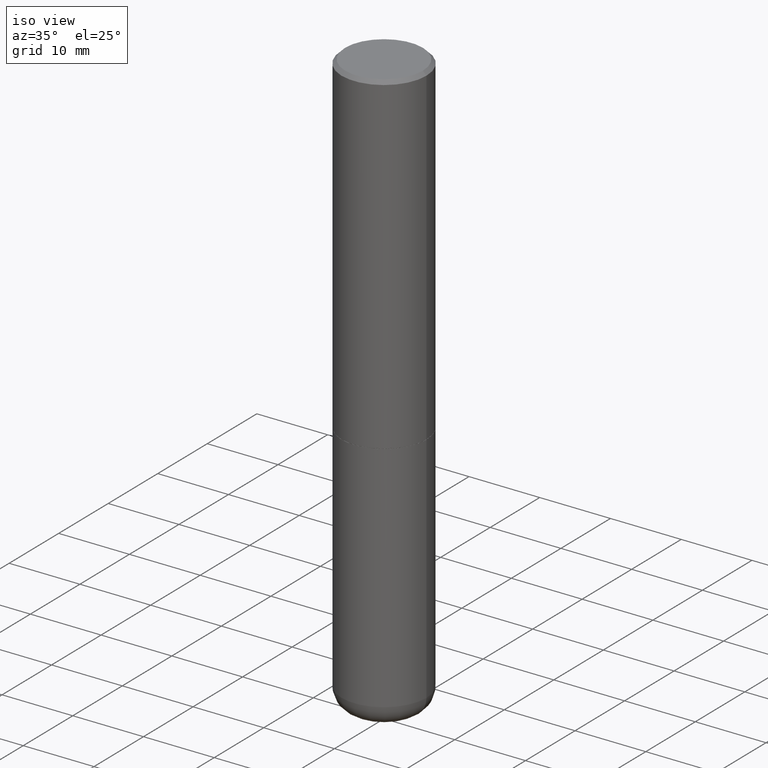
[diagram: clean part render]
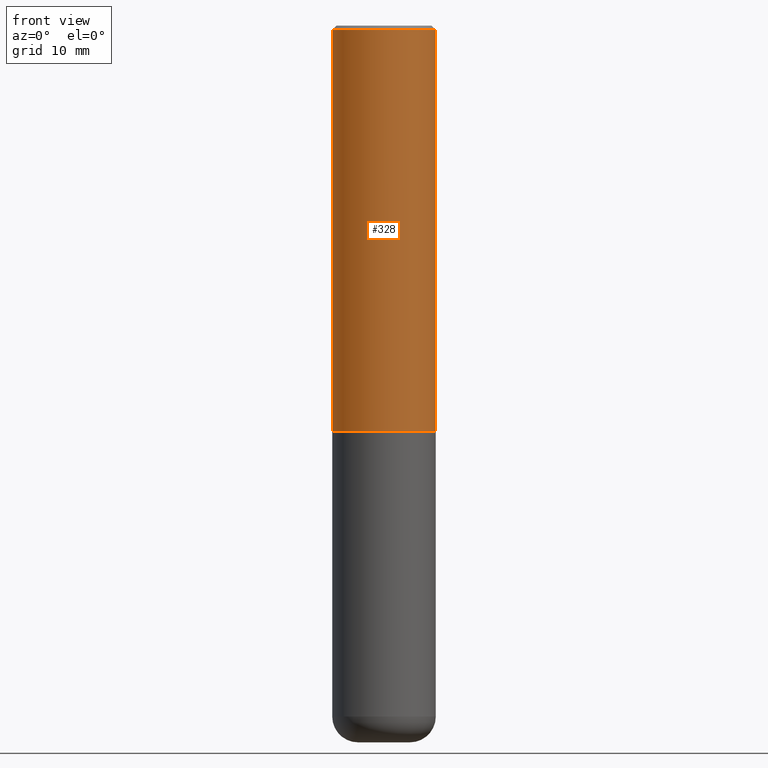
[diagram: tour spotlight — one face highlighted and labeled with its STEP entity id]
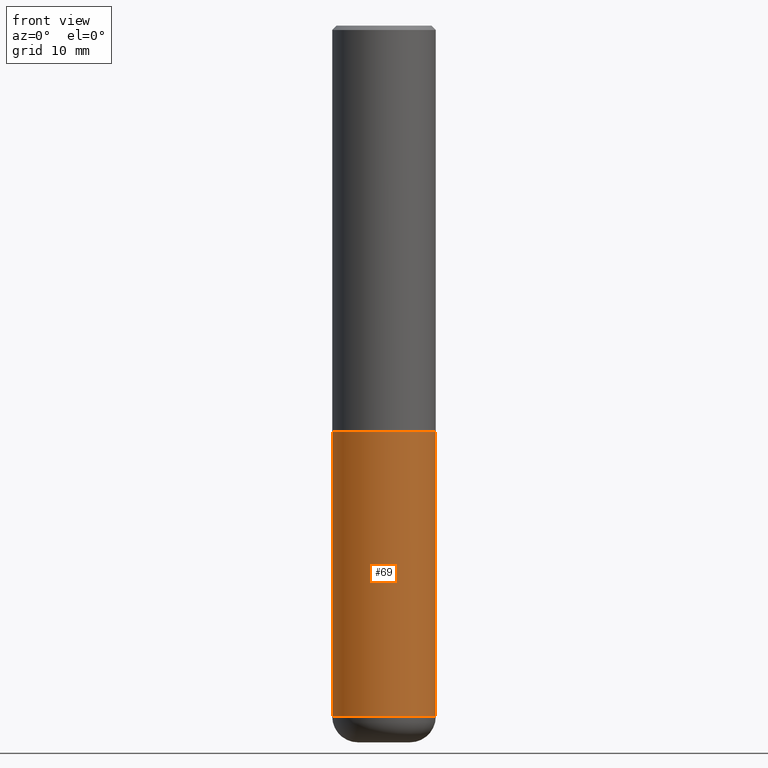
[diagram: tour spotlight — one face highlighted and labeled with its STEP entity id]
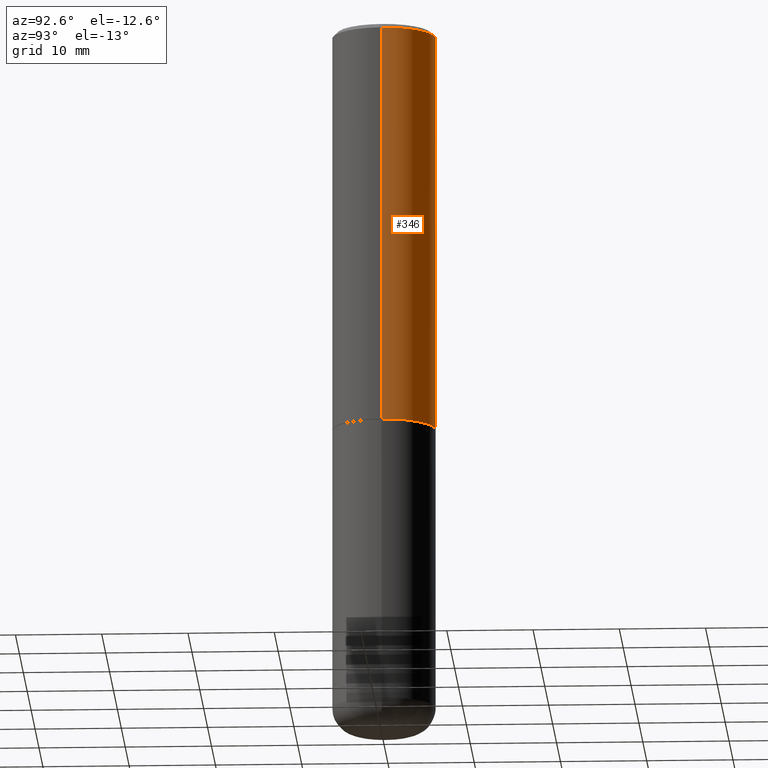
[diagram: tour spotlight — one face highlighted and labeled with its STEP entity id]
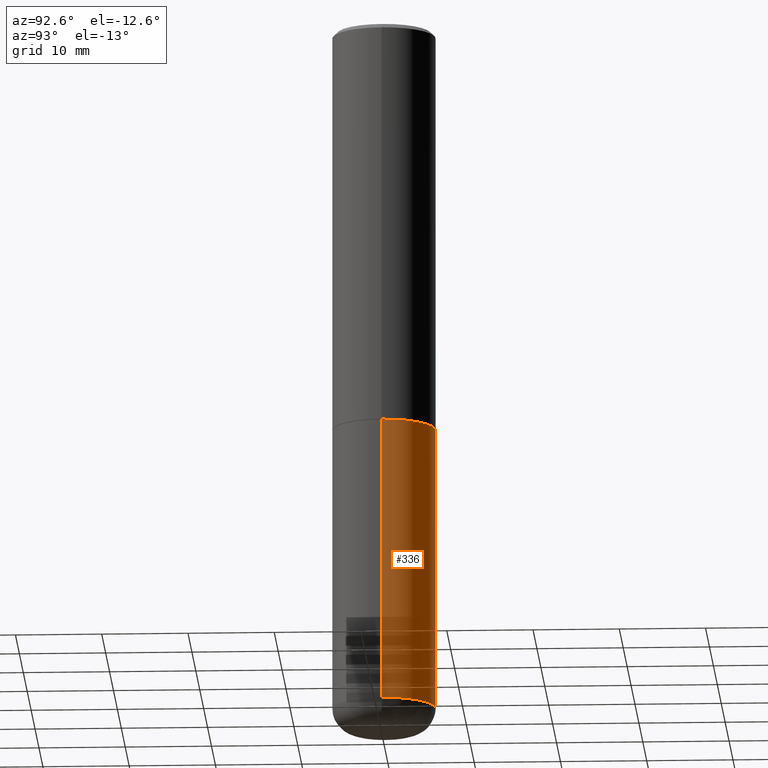
[diagram: tour spotlight — one face highlighted and labeled with its STEP entity id]
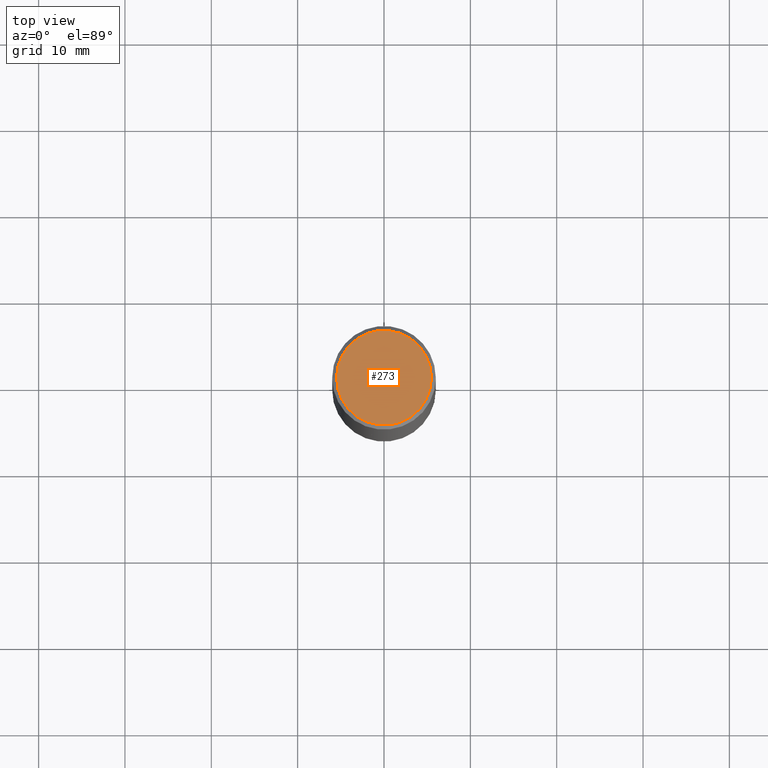
[diagram: tour spotlight — one face highlighted and labeled with its STEP entity id]
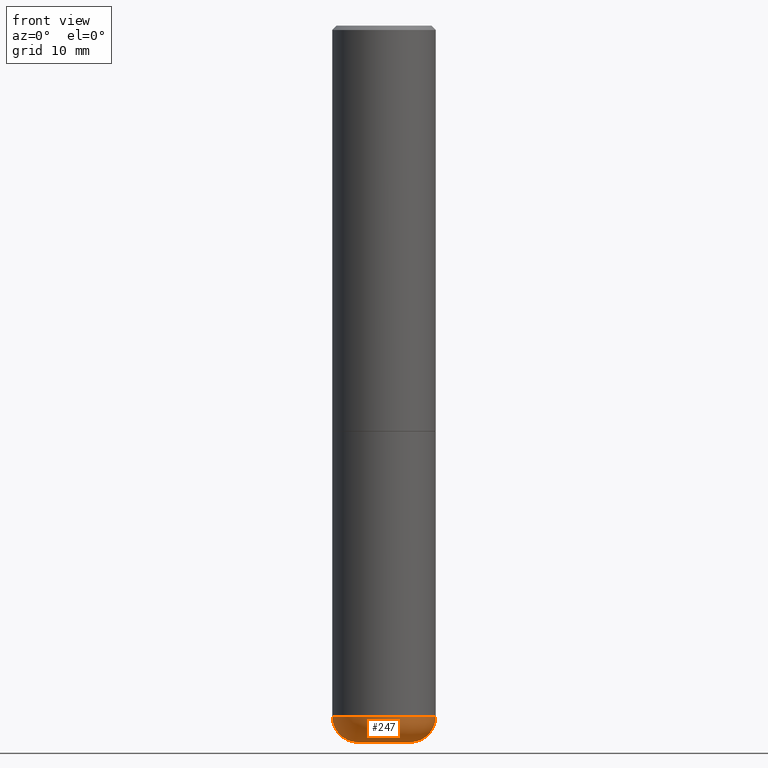
[diagram: tour spotlight — one face highlighted and labeled with its STEP entity id]
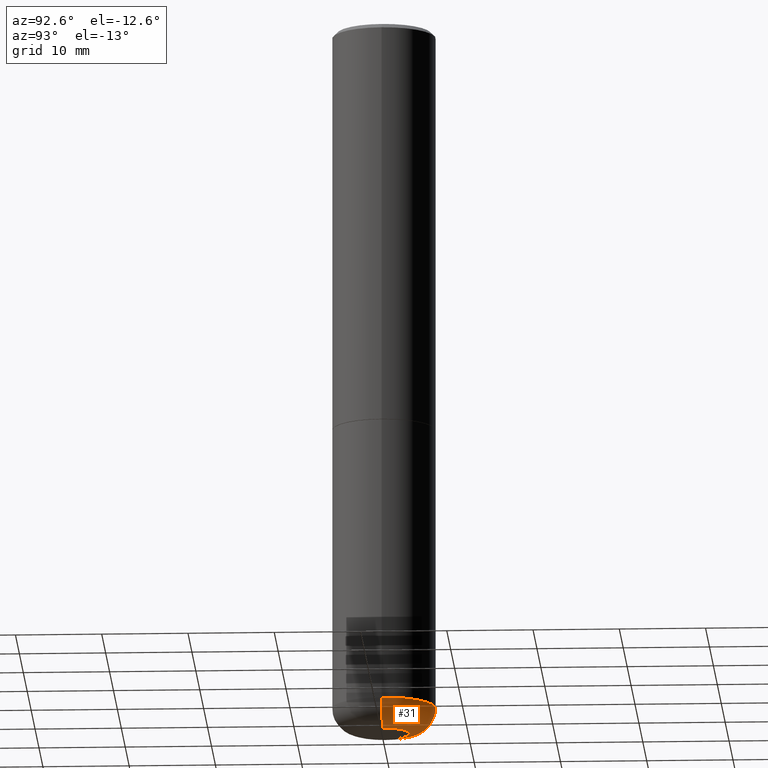
[diagram: tour spotlight — one face highlighted and labeled with its STEP entity id]
A machine part: a face-by-face anatomy tour. The part has 14 B-rep faces; the first image is the clean iso view, then the 7 largest visible faces are spotlighted one at a time (largest first), each with its STEP entity span.

Face 1 — front view, entity #328. In plain terms, the highlighted cylindrical surface (partial cylindrical patch) has radius 5.9995 mm, axis along (-0, 0, 1).
Definition (entity closure, byte-faithful):
#2 = DIRECTION ( 'NONE',  ( -2.445468806185136877E-29, 3.491481338843145188E-15, 1.000000000000000000 ) ) ;
#3 = CIRCLE ( 'NONE', #224, 0.2361999999999999655 ) ;
#8 = CARTESIAN_POINT ( 'NONE',  ( -0.2362000000000000766, 1.678301941865357183E-15, -1.161852468318209177E-29 ) ) ;
#20 = DIRECTION ( 'NONE',  ( 1.000000000000000000, -6.982962677686266711E-15, 4.876176775795935793E-29 ) ) ;
#40 = AXIS2_PLACEMENT_3D ( 'NONE', #306, #54, #20 ) ;
#54 = DIRECTION ( 'NONE',  ( -2.445468806185136597E-29, 3.491481338843145583E-15, 1.000000000000000000 ) ) ;
#57 = CYLINDRICAL_SURFACE ( 'NONE', #40, 0.2362000000000000766 ) ;
#80 = CIRCLE ( 'NONE', #397, 0.2362000000000002153 ) ;
#88 = ORIENTED_EDGE ( 'NONE', *, *, #156, .T. ) ;
#102 = DIRECTION ( 'NONE',  ( -2.445468806185136877E-29, 3.491481338843145188E-15, 1.000000000000000000 ) ) ;
#104 = DIRECTION ( 'NONE',  ( -2.445468806185136597E-29, 3.491481338843145583E-15, 1.000000000000000000 ) ) ;
#112 = CARTESIAN_POINT ( 'NONE',  ( 0.2362000000000002153, -8.106521372526011094E-15, -1.849400000000000155 ) ) ;
#121 = CARTESIAN_POINT ( 'NONE',  ( 0.2361999999999999655, -1.690279253850498771E-15, -0.02000000000000009062 ) ) ;
#123 = VERTEX_POINT ( 'NONE', #329 ) ;
#130 = EDGE_CURVE ( 'NONE', #123, #277, #3, .T. ) ;
#156 = EDGE_CURVE ( 'NONE', #269, #277, #291, .T. ) ;
#157 = CARTESIAN_POINT ( 'NONE',  ( 4.522650010158792351E-29, -6.457145588056513780E-15, -1.849400000000000155 ) ) ;
#172 = DIRECTION ( 'NONE',  ( 1.000000000000000000, -6.982962677686266711E-15, 0.000000000000000000 ) ) ;
#175 = CARTESIAN_POINT ( 'NONE',  ( 0.2362000000000000766, -1.649375784469496722E-15, 1.151752954443000368E-29 ) ) ;
#176 = EDGE_CURVE ( 'NONE', #272, #123, #259, .T. ) ;
#224 = AXIS2_PLACEMENT_3D ( 'NONE', #392, #104, #172 ) ;
#225 = EDGE_LOOP ( 'NONE', ( #343, #381, #88, #347 ) ) ;
#259 = LINE ( 'NONE', #8, #376 ) ;
#266 = VECTOR ( 'NONE', #2, 39.37007874015748143 ) ;
#267 = EDGE_CURVE ( 'NONE', #272, #269, #80, .T. ) ;
#269 = VERTEX_POINT ( 'NONE', #112 ) ;
#271 = DIRECTION ( 'NONE',  ( -2.445468806185136597E-29, 3.491481338843145583E-15, 1.000000000000000000 ) ) ;
#272 = VERTEX_POINT ( 'NONE', #380 ) ;
#277 = VERTEX_POINT ( 'NONE', #121 ) ;
#291 = LINE ( 'NONE', #175, #266 ) ;
#306 = CARTESIAN_POINT ( 'NONE',  ( 0.000000000000000000, 0.000000000000000000, 0.000000000000000000 ) ) ;
#328 = ADVANCED_FACE ( 'NONE', ( #410 ), #57, .T. ) ;
#329 = CARTESIAN_POINT ( 'NONE',  ( -0.2361999999999999655, 1.579546157692632635E-15, -0.02000000000000009062 ) ) ;
#343 = ORIENTED_EDGE ( 'NONE', *, *, #176, .F. ) ;
#345 = DIRECTION ( 'NONE',  ( 1.000000000000000000, -6.982962677686266711E-15, 0.000000000000000000 ) ) ;
#347 = ORIENTED_EDGE ( 'NONE', *, *, #130, .F. ) ;
#376 = VECTOR ( 'NONE', #102, 39.37007874015748143 ) ;
#380 = CARTESIAN_POINT ( 'NONE',  ( -0.2362000000000002431, -1.585185665551328595E-15, -1.849400000000000155 ) ) ;
#381 = ORIENTED_EDGE ( 'NONE', *, *, #267, .T. ) ;
#392 = CARTESIAN_POINT ( 'NONE',  ( 4.890937612370295054E-31, -6.982962677686322424E-17, -0.02000000000000009062 ) ) ;
#397 = AXIS2_PLACEMENT_3D ( 'NONE', #157, #271, #345 ) ;
#410 = FACE_OUTER_BOUND ( 'NONE', #225, .T. ) ;

Face 2 — front view, entity #69. In plain terms, the highlighted cylindrical surface (partial cylindrical patch) has radius 5.9995 mm, axis along (-0, 0, 1).
Definition (entity closure, byte-faithful):
#9 = ORIENTED_EDGE ( 'NONE', *, *, #220, .T. ) ;
#14 = EDGE_CURVE ( 'NONE', #158, #411, #153, .T. ) ;
#27 = CIRCLE ( 'NONE', #365, 0.2361999999999999933 ) ;
#30 = VERTEX_POINT ( 'NONE', #416 ) ;
#49 = EDGE_LOOP ( 'NONE', ( #119, #296, #9, #73 ) ) ;
#53 = VERTEX_POINT ( 'NONE', #192 ) ;
#69 = ADVANCED_FACE ( 'NONE', ( #288 ), #99, .T. ) ;
#73 = ORIENTED_EDGE ( 'NONE', *, *, #14, .F. ) ;
#99 = CYLINDRICAL_SURFACE ( 'NONE', #304, 0.2361999999999999933 ) ;
#115 = AXIS2_PLACEMENT_3D ( 'NONE', #281, #274, #402 ) ;
#119 = ORIENTED_EDGE ( 'NONE', *, *, #356, .F. ) ;
#128 = CARTESIAN_POINT ( 'NONE',  ( 0.2361999999999999933, -8.110012853864854101E-15, -1.850400000000000267 ) ) ;
#152 = CARTESIAN_POINT ( 'NONE',  ( 7.702248551960706711E-29, -1.099676962482037231E-14, -3.149600000000000399 ) ) ;
#153 = CIRCLE ( 'NONE', #115, 0.2361999999999999933 ) ;
#158 = VERTEX_POINT ( 'NONE', #394 ) ;
#169 = DIRECTION ( 'NONE',  ( 1.000000000000000000, -6.982962677686266711E-15, 4.876176775795936353E-29 ) ) ;
#184 = CARTESIAN_POINT ( 'NONE',  ( -0.2361999999999999933, 1.678301941865356591E-15, -1.161852468318208757E-29 ) ) ;
#192 = CARTESIAN_POINT ( 'NONE',  ( -0.2361999999999999933, -9.318467682955017493E-15, -3.149600000000000399 ) ) ;
#203 = LINE ( 'NONE', #264, #414 ) ;
#220 = EDGE_CURVE ( 'NONE', #30, #411, #203, .T. ) ;
#264 = CARTESIAN_POINT ( 'NONE',  ( 0.2361999999999999933, -1.649375784469496131E-15, 1.151752954443000088E-29 ) ) ;
#274 = DIRECTION ( 'NONE',  ( -2.445468806185136597E-29, 3.491481338843145583E-15, 1.000000000000000000 ) ) ;
#276 = DIRECTION ( 'NONE',  ( -2.445468806185136597E-29, 3.491481338843145583E-15, 1.000000000000000000 ) ) ;
#281 = CARTESIAN_POINT ( 'NONE',  ( 4.525095478964977394E-29, -6.460637069395357576E-15, -1.850400000000000267 ) ) ;
#288 = FACE_OUTER_BOUND ( 'NONE', #49, .T. ) ;
#296 = ORIENTED_EDGE ( 'NONE', *, *, #379, .T. ) ;
#304 = AXIS2_PLACEMENT_3D ( 'NONE', #330, #418, #169 ) ;
#330 = CARTESIAN_POINT ( 'NONE',  ( 0.000000000000000000, 0.000000000000000000, 0.000000000000000000 ) ) ;
#335 = DIRECTION ( 'NONE',  ( -2.445468806185136877E-29, 3.491481338843145188E-15, 1.000000000000000000 ) ) ;
#340 = LINE ( 'NONE', #184, #403 ) ;
#342 = DIRECTION ( 'NONE',  ( -2.445468806185136877E-29, 3.491481338843145188E-15, 1.000000000000000000 ) ) ;
#356 = EDGE_CURVE ( 'NONE', #53, #158, #340, .T. ) ;
#365 = AXIS2_PLACEMENT_3D ( 'NONE', #152, #276, #404 ) ;
#379 = EDGE_CURVE ( 'NONE', #53, #30, #27, .T. ) ;
#394 = CARTESIAN_POINT ( 'NONE',  ( -0.2361999999999999933, -7.050401405242508548E-15, -1.850400000000000267 ) ) ;
#402 = DIRECTION ( 'NONE',  ( 1.000000000000000000, -6.982962677686269077E-15, 0.000000000000000000 ) ) ;
#403 = VECTOR ( 'NONE', #342, 39.37007874015748143 ) ;
#404 = DIRECTION ( 'NONE',  ( 1.000000000000000000, -6.982962677686265133E-15, 0.000000000000000000 ) ) ;
#411 = VERTEX_POINT ( 'NONE', #128 ) ;
#414 = VECTOR ( 'NONE', #335, 39.37007874015748143 ) ;
#416 = CARTESIAN_POINT ( 'NONE',  ( 0.2361999999999999933, -1.264614540928986883E-14, -3.149600000000000399 ) ) ;
#418 = DIRECTION ( 'NONE',  ( -2.445468806185136597E-29, 3.491481338843145583E-15, 1.000000000000000000 ) ) ;

Face 3 — auxiliary view, entity #346. In plain terms, the highlighted cylindrical surface (partial cylindrical patch) has radius 5.9995 mm, axis along (-0, 0, 1).
Definition (entity closure, byte-faithful):
#2 = DIRECTION ( 'NONE',  ( -2.445468806185136877E-29, 3.491481338843145188E-15, 1.000000000000000000 ) ) ;
#8 = CARTESIAN_POINT ( 'NONE',  ( -0.2362000000000000766, 1.678301941865357183E-15, -1.161852468318209177E-29 ) ) ;
#39 = ORIENTED_EDGE ( 'NONE', *, *, #156, .F. ) ;
#55 = ORIENTED_EDGE ( 'NONE', *, *, #176, .T. ) ;
#83 = CARTESIAN_POINT ( 'NONE',  ( 4.890937612370295054E-31, -6.982962677686322424E-17, -0.02000000000000009062 ) ) ;
#91 = DIRECTION ( 'NONE',  ( 1.000000000000000000, -6.982962677686266711E-15, 0.000000000000000000 ) ) ;
#94 = AXIS2_PLACEMENT_3D ( 'NONE', #118, #248, #91 ) ;
#102 = DIRECTION ( 'NONE',  ( -2.445468806185136877E-29, 3.491481338843145188E-15, 1.000000000000000000 ) ) ;
#112 = CARTESIAN_POINT ( 'NONE',  ( 0.2362000000000002153, -8.106521372526011094E-15, -1.849400000000000155 ) ) ;
#118 = CARTESIAN_POINT ( 'NONE',  ( 4.522650010158792351E-29, -6.457145588056513780E-15, -1.849400000000000155 ) ) ;
#121 = CARTESIAN_POINT ( 'NONE',  ( 0.2361999999999999655, -1.690279253850498771E-15, -0.02000000000000009062 ) ) ;
#123 = VERTEX_POINT ( 'NONE', #329 ) ;
#126 = AXIS2_PLACEMENT_3D ( 'NONE', #217, #349, #180 ) ;
#154 = EDGE_LOOP ( 'NONE', ( #222, #55, #310, #39 ) ) ;
#156 = EDGE_CURVE ( 'NONE', #269, #277, #291, .T. ) ;
#175 = CARTESIAN_POINT ( 'NONE',  ( 0.2362000000000000766, -1.649375784469496722E-15, 1.151752954443000368E-29 ) ) ;
#176 = EDGE_CURVE ( 'NONE', #272, #123, #259, .T. ) ;
#180 = DIRECTION ( 'NONE',  ( 1.000000000000000000, -6.982962677686266711E-15, 4.876176775795935793E-29 ) ) ;
#209 = FACE_OUTER_BOUND ( 'NONE', #154, .T. ) ;
#217 = CARTESIAN_POINT ( 'NONE',  ( 0.000000000000000000, 0.000000000000000000, 0.000000000000000000 ) ) ;
#222 = ORIENTED_EDGE ( 'NONE', *, *, #395, .T. ) ;
#223 = CYLINDRICAL_SURFACE ( 'NONE', #126, 0.2362000000000000766 ) ;
#239 = CIRCLE ( 'NONE', #285, 0.2361999999999999655 ) ;
#241 = CIRCLE ( 'NONE', #94, 0.2362000000000002153 ) ;
#244 = DIRECTION ( 'NONE',  ( 1.000000000000000000, -6.982962677686266711E-15, 0.000000000000000000 ) ) ;
#248 = DIRECTION ( 'NONE',  ( -2.445468806185136597E-29, 3.491481338843145583E-15, 1.000000000000000000 ) ) ;
#250 = EDGE_CURVE ( 'NONE', #277, #123, #239, .T. ) ;
#259 = LINE ( 'NONE', #8, #376 ) ;
#266 = VECTOR ( 'NONE', #2, 39.37007874015748143 ) ;
#269 = VERTEX_POINT ( 'NONE', #112 ) ;
#272 = VERTEX_POINT ( 'NONE', #380 ) ;
#277 = VERTEX_POINT ( 'NONE', #121 ) ;
#285 = AXIS2_PLACEMENT_3D ( 'NONE', #83, #399, #244 ) ;
#291 = LINE ( 'NONE', #175, #266 ) ;
#310 = ORIENTED_EDGE ( 'NONE', *, *, #250, .F. ) ;
#329 = CARTESIAN_POINT ( 'NONE',  ( -0.2361999999999999655, 1.579546157692632635E-15, -0.02000000000000009062 ) ) ;
#346 = ADVANCED_FACE ( 'NONE', ( #209 ), #223, .T. ) ;
#349 = DIRECTION ( 'NONE',  ( -2.445468806185136597E-29, 3.491481338843145583E-15, 1.000000000000000000 ) ) ;
#376 = VECTOR ( 'NONE', #102, 39.37007874015748143 ) ;
#380 = CARTESIAN_POINT ( 'NONE',  ( -0.2362000000000002431, -1.585185665551328595E-15, -1.849400000000000155 ) ) ;
#395 = EDGE_CURVE ( 'NONE', #269, #272, #241, .T. ) ;
#399 = DIRECTION ( 'NONE',  ( -2.445468806185136597E-29, 3.491481338843145583E-15, 1.000000000000000000 ) ) ;

Face 4 — auxiliary view, entity #336. In plain terms, the highlighted cylindrical surface (partial cylindrical patch) has radius 5.9995 mm, axis along (-0, 0, 1).
Definition (entity closure, byte-faithful):
#19 = EDGE_CURVE ( 'NONE', #411, #158, #147, .T. ) ;
#26 = AXIS2_PLACEMENT_3D ( 'NONE', #389, #230, #42 ) ;
#30 = VERTEX_POINT ( 'NONE', #416 ) ;
#42 = DIRECTION ( 'NONE',  ( 1.000000000000000000, -6.982962677686265133E-15, 0.000000000000000000 ) ) ;
#48 = CARTESIAN_POINT ( 'NONE',  ( 0.000000000000000000, 0.000000000000000000, 0.000000000000000000 ) ) ;
#53 = VERTEX_POINT ( 'NONE', #192 ) ;
#86 = EDGE_CURVE ( 'NONE', #30, #53, #211, .T. ) ;
#95 = ORIENTED_EDGE ( 'NONE', *, *, #356, .T. ) ;
#103 = ORIENTED_EDGE ( 'NONE', *, *, #86, .T. ) ;
#120 = DIRECTION ( 'NONE',  ( -2.445468806185136597E-29, 3.491481338843145583E-15, 1.000000000000000000 ) ) ;
#124 = DIRECTION ( 'NONE',  ( 1.000000000000000000, -6.982962677686266711E-15, 4.876176775795936353E-29 ) ) ;
#128 = CARTESIAN_POINT ( 'NONE',  ( 0.2361999999999999933, -8.110012853864854101E-15, -1.850400000000000267 ) ) ;
#147 = CIRCLE ( 'NONE', #253, 0.2361999999999999933 ) ;
#151 = EDGE_LOOP ( 'NONE', ( #103, #95, #188, #405 ) ) ;
#158 = VERTEX_POINT ( 'NONE', #394 ) ;
#184 = CARTESIAN_POINT ( 'NONE',  ( -0.2361999999999999933, 1.678301941865356591E-15, -1.161852468318208757E-29 ) ) ;
#186 = DIRECTION ( 'NONE',  ( -2.445468806185136597E-29, 3.491481338843145583E-15, 1.000000000000000000 ) ) ;
#188 = ORIENTED_EDGE ( 'NONE', *, *, #19, .F. ) ;
#192 = CARTESIAN_POINT ( 'NONE',  ( -0.2361999999999999933, -9.318467682955017493E-15, -3.149600000000000399 ) ) ;
#203 = LINE ( 'NONE', #264, #414 ) ;
#211 = CIRCLE ( 'NONE', #26, 0.2361999999999999933 ) ;
#219 = CARTESIAN_POINT ( 'NONE',  ( 4.525095478964977394E-29, -6.460637069395357576E-15, -1.850400000000000267 ) ) ;
#220 = EDGE_CURVE ( 'NONE', #30, #411, #203, .T. ) ;
#230 = DIRECTION ( 'NONE',  ( -2.445468806185136597E-29, 3.491481338843145583E-15, 1.000000000000000000 ) ) ;
#253 = AXIS2_PLACEMENT_3D ( 'NONE', #219, #120, #408 ) ;
#264 = CARTESIAN_POINT ( 'NONE',  ( 0.2361999999999999933, -1.649375784469496131E-15, 1.151752954443000088E-29 ) ) ;
#268 = AXIS2_PLACEMENT_3D ( 'NONE', #48, #186, #124 ) ;
#335 = DIRECTION ( 'NONE',  ( -2.445468806185136877E-29, 3.491481338843145188E-15, 1.000000000000000000 ) ) ;
#336 = ADVANCED_FACE ( 'NONE', ( #382 ), #341, .T. ) ;
#340 = LINE ( 'NONE', #184, #403 ) ;
#341 = CYLINDRICAL_SURFACE ( 'NONE', #268, 0.2361999999999999933 ) ;
#342 = DIRECTION ( 'NONE',  ( -2.445468806185136877E-29, 3.491481338843145188E-15, 1.000000000000000000 ) ) ;
#356 = EDGE_CURVE ( 'NONE', #53, #158, #340, .T. ) ;
#382 = FACE_OUTER_BOUND ( 'NONE', #151, .T. ) ;
#389 = CARTESIAN_POINT ( 'NONE',  ( 7.702248551960706711E-29, -1.099676962482037231E-14, -3.149600000000000399 ) ) ;
#394 = CARTESIAN_POINT ( 'NONE',  ( -0.2361999999999999933, -7.050401405242508548E-15, -1.850400000000000267 ) ) ;
#403 = VECTOR ( 'NONE', #342, 39.37007874015748143 ) ;
#405 = ORIENTED_EDGE ( 'NONE', *, *, #220, .F. ) ;
#408 = DIRECTION ( 'NONE',  ( 1.000000000000000000, -6.982962677686269077E-15, 0.000000000000000000 ) ) ;
#411 = VERTEX_POINT ( 'NONE', #128 ) ;
#414 = VECTOR ( 'NONE', #335, 39.37007874015748143 ) ;
#416 = CARTESIAN_POINT ( 'NONE',  ( 0.2361999999999999933, -1.264614540928986883E-14, -3.149600000000000399 ) ) ;

Face 5 — top view, entity #273. In plain terms, the highlighted planar face has unit normal (0, -0, -1).
Definition (entity closure, byte-faithful):
#7 = DIRECTION ( 'NONE',  ( -2.445468806185136597E-29, 3.491481338843145583E-15, 1.000000000000000000 ) ) ;
#12 = EDGE_CURVE ( 'NONE', #249, #218, #371, .T. ) ;
#16 = AXIS2_PLACEMENT_3D ( 'NONE', #246, #193, #321 ) ;
#29 = CARTESIAN_POINT ( 'NONE',  ( 0.2162000000000001143, -1.586759460484352382E-15, -1.408609121733027408E-16 ) ) ;
#71 = CARTESIAN_POINT ( 'NONE',  ( -0.2162000000000001143, 1.544631344304201972E-15, -1.408609121733242372E-16 ) ) ;
#106 = AXIS2_PLACEMENT_3D ( 'NONE', #159, #251, #190 ) ;
#159 = CARTESIAN_POINT ( 'NONE',  ( 1.509716530915771507E-15, 0.2162000000000001143, -8.252887215445451602E-16 ) ) ;
#190 = DIRECTION ( 'NONE',  ( -1.000000000000000000, 6.982962677686265922E-15, -4.876176775795935793E-29 ) ) ;
#193 = DIRECTION ( 'NONE',  ( -2.445468806185136597E-29, 3.491481338843145583E-15, 1.000000000000000000 ) ) ;
#218 = VERTEX_POINT ( 'NONE', #71 ) ;
#221 = FACE_OUTER_BOUND ( 'NONE', #383, .T. ) ;
#246 = CARTESIAN_POINT ( 'NONE',  ( 3.444709667306225463E-45, -4.918132462255475514E-31, -1.408609121733135630E-16 ) ) ;
#249 = VERTEX_POINT ( 'NONE', #29 ) ;
#251 = DIRECTION ( 'NONE',  ( 2.438088387897960049E-29, -3.491481338843145188E-15, -1.000000000000000000 ) ) ;
#256 = CARTESIAN_POINT ( 'NONE',  ( 3.444709667306225463E-45, -4.918132462255475514E-31, -1.408609121733135630E-16 ) ) ;
#273 = ADVANCED_FACE ( 'NONE', ( #221 ), #406, .F. ) ;
#289 = ORIENTED_EDGE ( 'NONE', *, *, #409, .T. ) ;
#316 = AXIS2_PLACEMENT_3D ( 'NONE', #256, #7, #363 ) ;
#321 = DIRECTION ( 'NONE',  ( 1.000000000000000000, -6.982962677686266711E-15, 4.881916136609859212E-29 ) ) ;
#324 = CIRCLE ( 'NONE', #316, 0.2162000000000001143 ) ;
#363 = DIRECTION ( 'NONE',  ( 1.000000000000000000, -6.982962677686266711E-15, 4.881916136609859212E-29 ) ) ;
#371 = CIRCLE ( 'NONE', #16, 0.2162000000000001143 ) ;
#383 = EDGE_LOOP ( 'NONE', ( #289, #398 ) ) ;
#398 = ORIENTED_EDGE ( 'NONE', *, *, #12, .T. ) ;
#406 = PLANE ( 'NONE',  #106 ) ;
#409 = EDGE_CURVE ( 'NONE', #218, #249, #324, .T. ) ;

Face 6 — front view, entity #247. In plain terms, the highlighted toroidal blend (fillet) surface has major radius 2.9997 mm and minor (blend) radius 2.9997 mm.
Definition (entity closure, byte-faithful):
#13 = AXIS2_PLACEMENT_3D ( 'NONE', #237, #139, #263 ) ;
#27 = CIRCLE ( 'NONE', #365, 0.2361999999999999933 ) ;
#30 = VERTEX_POINT ( 'NONE', #416 ) ;
#34 = DIRECTION ( 'NONE',  ( 1.000000000000000000, -6.982962677686272233E-15, 0.000000000000000000 ) ) ;
#43 = VERTEX_POINT ( 'NONE', #226 ) ;
#53 = VERTEX_POINT ( 'NONE', #192 ) ;
#64 = DIRECTION ( 'NONE',  ( -2.445468806185136597E-29, 3.491481338843145583E-15, 1.000000000000000000 ) ) ;
#79 = CIRCLE ( 'NONE', #212, 0.1181000000000000105 ) ;
#89 = VERTEX_POINT ( 'NONE', #297 ) ;
#109 = ORIENTED_EDGE ( 'NONE', *, *, #243, .T. ) ;
#111 = ORIENTED_EDGE ( 'NONE', *, *, #215, .F. ) ;
#125 = CARTESIAN_POINT ( 'NONE',  ( 0.1180999999999999966, -1.182145751705512057E-14, -3.149600000000000399 ) ) ;
#139 = DIRECTION ( 'NONE',  ( 7.105427357601001859E-15, 1.000000000000000000, -3.491481338843145583E-15 ) ) ;
#145 = AXIS2_PLACEMENT_3D ( 'NONE', #183, #317, #278 ) ;
#152 = CARTESIAN_POINT ( 'NONE',  ( 7.702248551960706711E-29, -1.099676962482037231E-14, -3.149600000000000399 ) ) ;
#177 = DIRECTION ( 'NONE',  ( -6.982962677686266711E-15, -1.000000000000000000, 3.491481338843145583E-15 ) ) ;
#179 = AXIS2_PLACEMENT_3D ( 'NONE', #125, #177, #360 ) ;
#183 = CARTESIAN_POINT ( 'NONE',  ( 7.702248551960706711E-29, -1.099676962482037231E-14, -3.149600000000000399 ) ) ;
#192 = CARTESIAN_POINT ( 'NONE',  ( -0.2361999999999999933, -9.318467682955017493E-15, -3.149600000000000399 ) ) ;
#205 = EDGE_CURVE ( 'NONE', #43, #89, #79, .T. ) ;
#206 = CARTESIAN_POINT ( 'NONE',  ( 7.991058417971171713E-29, -1.140911357093774644E-14, -3.267700000000000049 ) ) ;
#212 = AXIS2_PLACEMENT_3D ( 'NONE', #206, #64, #34 ) ;
#215 = EDGE_CURVE ( 'NONE', #43, #53, #372, .T. ) ;
#216 = FACE_OUTER_BOUND ( 'NONE', #390, .T. ) ;
#226 = CARTESIAN_POINT ( 'NONE',  ( -0.1181000000000000383, -9.944215141480041685E-15, -3.267700000000000049 ) ) ;
#228 = ORIENTED_EDGE ( 'NONE', *, *, #379, .F. ) ;
#231 = CIRCLE ( 'NONE', #179, 0.1180999999999999966 ) ;
#237 = CARTESIAN_POINT ( 'NONE',  ( -0.1180999999999999966, -1.015761865388769332E-14, -3.149600000000000399 ) ) ;
#243 = EDGE_CURVE ( 'NONE', #89, #30, #231, .T. ) ;
#247 = ADVANCED_FACE ( 'NONE', ( #216 ), #305, .T. ) ;
#263 = DIRECTION ( 'NONE',  ( -1.000000000000000000, 7.105427357601005014E-15, 0.000000000000000000 ) ) ;
#276 = DIRECTION ( 'NONE',  ( -2.445468806185136597E-29, 3.491481338843145583E-15, 1.000000000000000000 ) ) ;
#278 = DIRECTION ( 'NONE',  ( 1.000000000000000000, -6.982962677686264344E-15, 4.883557194083111780E-29 ) ) ;
#297 = CARTESIAN_POINT ( 'NONE',  ( 0.1181000000000000105, -1.223380146317249628E-14, -3.267700000000000049 ) ) ;
#305 = TOROIDAL_SURFACE ( 'NONE', #145, 0.1180999999999999966, 0.1181000000000000105 ) ;
#317 = DIRECTION ( 'NONE',  ( -2.445468806185136597E-29, 3.491481338843145583E-15, 1.000000000000000000 ) ) ;
#360 = DIRECTION ( 'NONE',  ( 1.000000000000000000, -6.982962677686273021E-15, 0.000000000000000000 ) ) ;
#365 = AXIS2_PLACEMENT_3D ( 'NONE', #152, #276, #404 ) ;
#372 = CIRCLE ( 'NONE', #13, 0.1180999999999999966 ) ;
#379 = EDGE_CURVE ( 'NONE', #53, #30, #27, .T. ) ;
#390 = EDGE_LOOP ( 'NONE', ( #111, #401, #109, #228 ) ) ;
#401 = ORIENTED_EDGE ( 'NONE', *, *, #205, .T. ) ;
#404 = DIRECTION ( 'NONE',  ( 1.000000000000000000, -6.982962677686265133E-15, 0.000000000000000000 ) ) ;
#416 = CARTESIAN_POINT ( 'NONE',  ( 0.2361999999999999933, -1.264614540928986883E-14, -3.149600000000000399 ) ) ;

Face 7 — auxiliary view, entity #31. In plain terms, the highlighted toroidal blend (fillet) surface has major radius 2.9997 mm and minor (blend) radius 2.9997 mm.
Definition (entity closure, byte-faithful):
#13 = AXIS2_PLACEMENT_3D ( 'NONE', #237, #139, #263 ) ;
#22 = EDGE_LOOP ( 'NONE', ( #97, #28, #58, #245 ) ) ;
#26 = AXIS2_PLACEMENT_3D ( 'NONE', #389, #230, #42 ) ;
#28 = ORIENTED_EDGE ( 'NONE', *, *, #215, .T. ) ;
#30 = VERTEX_POINT ( 'NONE', #416 ) ;
#31 = ADVANCED_FACE ( 'NONE', ( #33 ), #413, .T. ) ;
#33 = FACE_OUTER_BOUND ( 'NONE', #22, .T. ) ;
#42 = DIRECTION ( 'NONE',  ( 1.000000000000000000, -6.982962677686265133E-15, 0.000000000000000000 ) ) ;
#43 = VERTEX_POINT ( 'NONE', #226 ) ;
#53 = VERTEX_POINT ( 'NONE', #192 ) ;
#58 = ORIENTED_EDGE ( 'NONE', *, *, #86, .F. ) ;
#86 = EDGE_CURVE ( 'NONE', #30, #53, #211, .T. ) ;
#89 = VERTEX_POINT ( 'NONE', #297 ) ;
#97 = ORIENTED_EDGE ( 'NONE', *, *, #182, .T. ) ;
#125 = CARTESIAN_POINT ( 'NONE',  ( 0.1180999999999999966, -1.182145751705512057E-14, -3.149600000000000399 ) ) ;
#129 = CARTESIAN_POINT ( 'NONE',  ( 7.702248551960706711E-29, -1.099676962482037231E-14, -3.149600000000000399 ) ) ;
#139 = DIRECTION ( 'NONE',  ( 7.105427357601001859E-15, 1.000000000000000000, -3.491481338843145583E-15 ) ) ;
#155 = CIRCLE ( 'NONE', #178, 0.1181000000000000105 ) ;
#177 = DIRECTION ( 'NONE',  ( -6.982962677686266711E-15, -1.000000000000000000, 3.491481338843145583E-15 ) ) ;
#178 = AXIS2_PLACEMENT_3D ( 'NONE', #233, #265, #195 ) ;
#179 = AXIS2_PLACEMENT_3D ( 'NONE', #125, #177, #360 ) ;
#182 = EDGE_CURVE ( 'NONE', #89, #43, #155, .T. ) ;
#192 = CARTESIAN_POINT ( 'NONE',  ( -0.2361999999999999933, -9.318467682955017493E-15, -3.149600000000000399 ) ) ;
#195 = DIRECTION ( 'NONE',  ( 1.000000000000000000, -6.982962677686272233E-15, 0.000000000000000000 ) ) ;
#211 = CIRCLE ( 'NONE', #26, 0.2361999999999999933 ) ;
#215 = EDGE_CURVE ( 'NONE', #43, #53, #372, .T. ) ;
#226 = CARTESIAN_POINT ( 'NONE',  ( -0.1181000000000000383, -9.944215141480041685E-15, -3.267700000000000049 ) ) ;
#230 = DIRECTION ( 'NONE',  ( -2.445468806185136597E-29, 3.491481338843145583E-15, 1.000000000000000000 ) ) ;
#231 = CIRCLE ( 'NONE', #179, 0.1180999999999999966 ) ;
#233 = CARTESIAN_POINT ( 'NONE',  ( 7.991058417971171713E-29, -1.140911357093774644E-14, -3.267700000000000049 ) ) ;
#237 = CARTESIAN_POINT ( 'NONE',  ( -0.1180999999999999966, -1.015761865388769332E-14, -3.149600000000000399 ) ) ;
#243 = EDGE_CURVE ( 'NONE', #89, #30, #231, .T. ) ;
#245 = ORIENTED_EDGE ( 'NONE', *, *, #243, .F. ) ;
#263 = DIRECTION ( 'NONE',  ( -1.000000000000000000, 7.105427357601005014E-15, 0.000000000000000000 ) ) ;
#265 = DIRECTION ( 'NONE',  ( -2.445468806185136597E-29, 3.491481338843145583E-15, 1.000000000000000000 ) ) ;
#297 = CARTESIAN_POINT ( 'NONE',  ( 0.1181000000000000105, -1.223380146317249628E-14, -3.267700000000000049 ) ) ;
#344 = DIRECTION ( 'NONE',  ( 1.000000000000000000, -6.982962677686264344E-15, 4.883557194083111780E-29 ) ) ;
#357 = AXIS2_PLACEMENT_3D ( 'NONE', #129, #378, #344 ) ;
#360 = DIRECTION ( 'NONE',  ( 1.000000000000000000, -6.982962677686273021E-15, 0.000000000000000000 ) ) ;
#372 = CIRCLE ( 'NONE', #13, 0.1180999999999999966 ) ;
#378 = DIRECTION ( 'NONE',  ( -2.445468806185136597E-29, 3.491481338843145583E-15, 1.000000000000000000 ) ) ;
#389 = CARTESIAN_POINT ( 'NONE',  ( 7.702248551960706711E-29, -1.099676962482037231E-14, -3.149600000000000399 ) ) ;
#413 = TOROIDAL_SURFACE ( 'NONE', #357, 0.1180999999999999966, 0.1181000000000000105 ) ;
#416 = CARTESIAN_POINT ( 'NONE',  ( 0.2361999999999999933, -1.264614540928986883E-14, -3.149600000000000399 ) ) ;